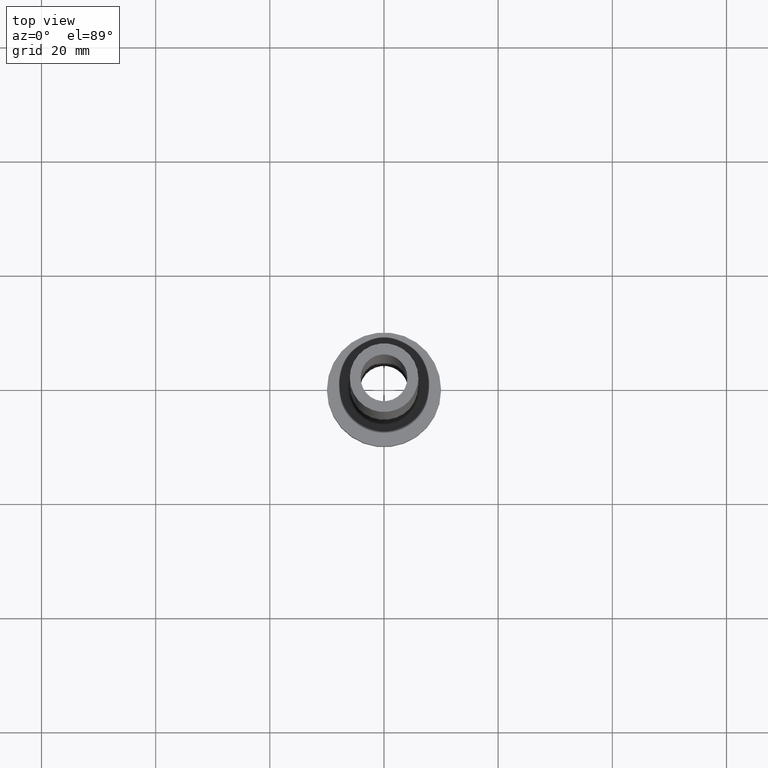
[diagram: clean part render]
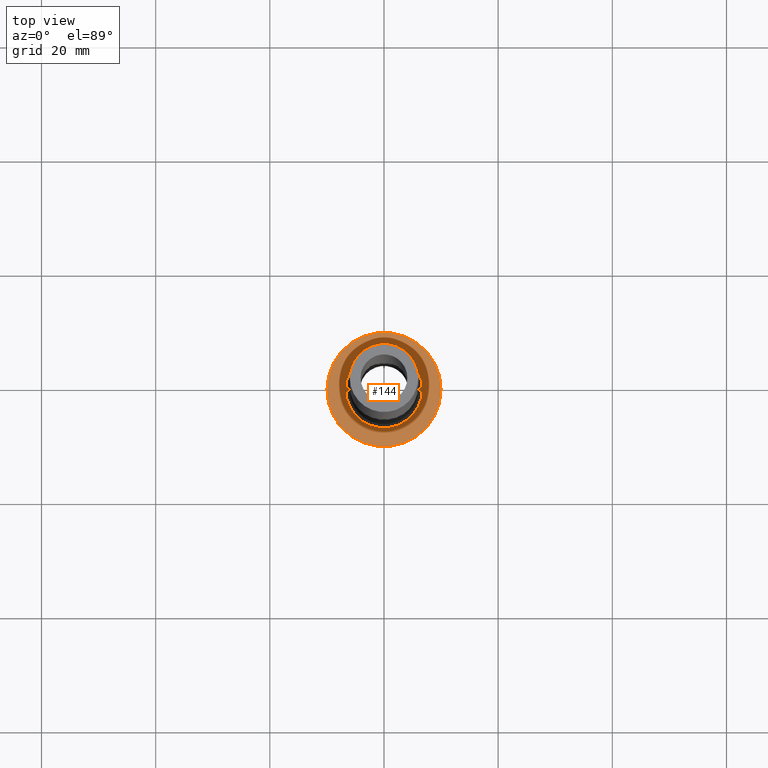
[diagram: same view with one face highlighted and labeled with its STEP entity id]
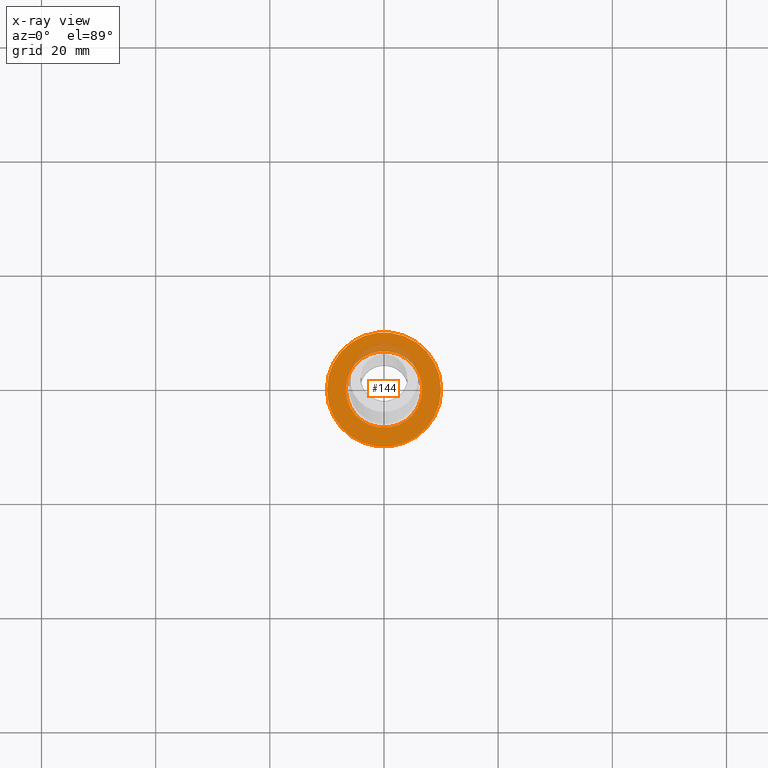
[diagram: x-ray of the same camera — body ghosted, the highlighted face saturated]
A machine part, top view. The second image highlights one B-rep face of the part: STEP entity #144.
The next image is the same camera in x-ray: the body ghosted, the highlighted face saturated — about 8% of this face is hidden behind the body in this view.
In plain terms, the highlighted planar face has unit normal (0, 0, 1).
Its self-contained STEP definition (entity closure, byte-faithful):
#3 = DIRECTION ( 'NONE',  ( 0.000000000000000000, 0.000000000000000000, 1.000000000000000000 ) ) ;
#10 = CARTESIAN_POINT ( 'NONE',  ( -10.00000000000000000, 0.000000000000000000, 7.000000000000000000 ) ) ;
#11 = EDGE_CURVE ( 'NONE', #228, #368, #233, .T. ) ;
#24 = CIRCLE ( 'NONE', #288, 6.700000000000001066 ) ;
#35 = DIRECTION ( 'NONE',  ( 1.000000000000000000, 0.000000000000000000, 0.000000000000000000 ) ) ;
#41 = AXIS2_PLACEMENT_3D ( 'NONE', #281, #67, #314 ) ;
#67 = DIRECTION ( 'NONE',  ( 0.000000000000000000, 0.000000000000000000, 1.000000000000000000 ) ) ;
#87 = CARTESIAN_POINT ( 'NONE',  ( -6.700000000000001066, 8.205133554287267548E-16, 6.999999999999999112 ) ) ;
#89 = ORIENTED_EDGE ( 'NONE', *, *, #11, .T. ) ;
#95 = EDGE_CURVE ( 'NONE', #398, #405, #320, .T. ) ;
#104 = ORIENTED_EDGE ( 'NONE', *, *, #95, .T. ) ;
#111 = FACE_BOUND ( 'NONE', #162, .T. ) ;
#144 = ADVANCED_FACE ( 'NONE', ( #111, #321 ), #219, .T. ) ;
#145 = AXIS2_PLACEMENT_3D ( 'NONE', #277, #385, #35 ) ;
#149 = DIRECTION ( 'NONE',  ( -0.000000000000000000, -0.000000000000000000, -1.000000000000000000 ) ) ;
#162 = EDGE_LOOP ( 'NONE', ( #232, #104 ) ) ;
#168 = ORIENTED_EDGE ( 'NONE', *, *, #431, .T. ) ;
#179 = CIRCLE ( 'NONE', #278, 10.00000000000000000 ) ;
#183 = CARTESIAN_POINT ( 'NONE',  ( 0.000000000000000000, 0.000000000000000000, 7.000000000000000000 ) ) ;
#217 = CARTESIAN_POINT ( 'NONE',  ( 10.00000000000000000, 1.224646799147353256E-15, 7.000000000000000000 ) ) ;
#219 = PLANE ( 'NONE',  #433 ) ;
#228 = VERTEX_POINT ( 'NONE', #217 ) ;
#232 = ORIENTED_EDGE ( 'NONE', *, *, #275, .T. ) ;
#233 = CIRCLE ( 'NONE', #41, 10.00000000000000000 ) ;
#240 = CARTESIAN_POINT ( 'NONE',  ( 6.700000000000001066, 0.000000000000000000, 6.999999999999999112 ) ) ;
#241 = EDGE_LOOP ( 'NONE', ( #168, #89 ) ) ;
#254 = DIRECTION ( 'NONE',  ( 1.000000000000000000, 0.000000000000000000, 0.000000000000000000 ) ) ;
#275 = EDGE_CURVE ( 'NONE', #405, #398, #24, .T. ) ;
#277 = CARTESIAN_POINT ( 'NONE',  ( 0.000000000000000000, 0.000000000000000000, 7.000000000000000000 ) ) ;
#278 = AXIS2_PLACEMENT_3D ( 'NONE', #410, #343, #408 ) ;
#281 = CARTESIAN_POINT ( 'NONE',  ( 0.000000000000000000, 0.000000000000000000, 7.000000000000000000 ) ) ;
#288 = AXIS2_PLACEMENT_3D ( 'NONE', #397, #149, #254 ) ;
#290 = DIRECTION ( 'NONE',  ( 1.000000000000000000, 0.000000000000000000, -0.000000000000000000 ) ) ;
#314 = DIRECTION ( 'NONE',  ( 1.000000000000000000, 0.000000000000000000, 0.000000000000000000 ) ) ;
#320 = CIRCLE ( 'NONE', #145, 6.700000000000001066 ) ;
#321 = FACE_OUTER_BOUND ( 'NONE', #241, .T. ) ;
#343 = DIRECTION ( 'NONE',  ( 0.000000000000000000, 0.000000000000000000, 1.000000000000000000 ) ) ;
#368 = VERTEX_POINT ( 'NONE', #10 ) ;
#385 = DIRECTION ( 'NONE',  ( -0.000000000000000000, -0.000000000000000000, -1.000000000000000000 ) ) ;
#397 = CARTESIAN_POINT ( 'NONE',  ( 0.000000000000000000, 0.000000000000000000, 7.000000000000000000 ) ) ;
#398 = VERTEX_POINT ( 'NONE', #87 ) ;
#405 = VERTEX_POINT ( 'NONE', #240 ) ;
#408 = DIRECTION ( 'NONE',  ( 1.000000000000000000, 0.000000000000000000, 0.000000000000000000 ) ) ;
#410 = CARTESIAN_POINT ( 'NONE',  ( 0.000000000000000000, 0.000000000000000000, 7.000000000000000000 ) ) ;
#431 = EDGE_CURVE ( 'NONE', #368, #228, #179, .T. ) ;
#433 = AXIS2_PLACEMENT_3D ( 'NONE', #183, #3, #290 ) ;